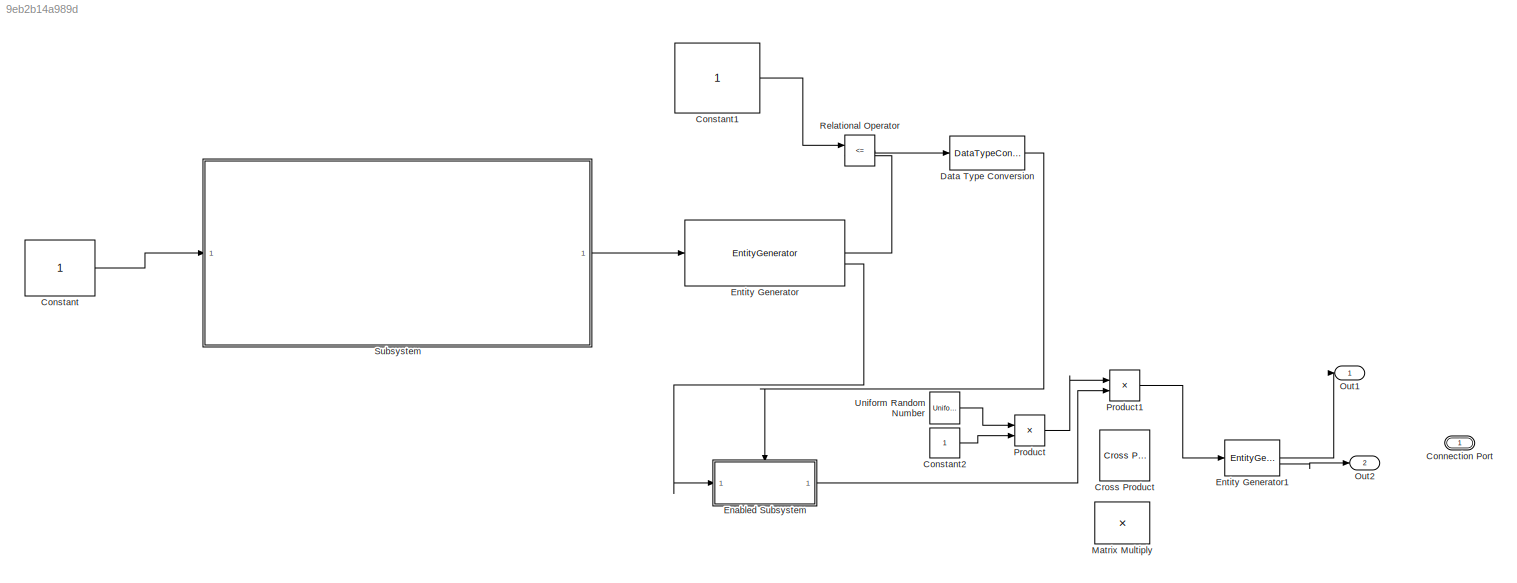
MODEL slx_9eb2b14a989d
KIND model
CONFIG AbsTol = auto
CONFIG EnableMultiTasking = off
CONFIG FixedStep = auto
CONFIG MaxStep = auto
CONFIG MinStep = auto
CONFIG RelTol = 1e-3
CONFIG SampleTimeConstraint = Unconstrained
CONFIG SolverName = VariableStepAuto
CONFIG StartTime = 0.0
CONFIG StopTime = 10.0
BLOCK [PMIOPort] Connection Port
  Side = Left
BLOCK [Constant] Constant
BLOCK [Constant] Constant1
BLOCK [Constant] Constant2
BLOCK [Reference] Cross Product  REF=matrix_library/Cross Product
  LibrarySourceBlock = simulink/Matrix\nOperations/Cross Product
  SourceBlock = matrix_library/Cross Product
  SourceType = CrossProduct
BLOCK [DataTypeConversion] Data Type Conversion
  OutDataTypeStr = double
  RndMeth = Floor
  SaturateOnIntegerOverflow = off
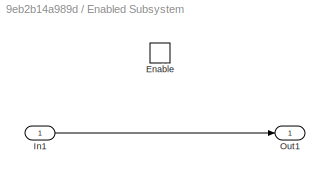
BLOCK [SubSystem] Enabled Subsystem
  TreatAsAtomicUnit = on
BLOCK [EnablePort] Enabled Subsystem/Enable
BLOCK [Inport] Enabled Subsystem/In1
BLOCK [Outport] Enabled Subsystem/Out1
BLOCK [EntityGenerator] Entity Generator
  EntityType = Structured
  EntityTypeName = Entity
  InputPortMap = u1
  NumberEntitiesDeparted = on
  OutputPortMap = o0,o3
  OutputPortMessageModes = n,m
  TimeSource = Signal port
BLOCK [EntityGenerator] Entity Generator1
  EntityType = Structured
  EntityTypeName = Entity
  InputPortMap = u1
  NumberEntitiesDeparted = on
  OutputPortMap = o0,o3
  OutputPortMessageModes = n,m
  TimeSource = Signal port
BLOCK [Product] Matrix Multiply
  Multiplication = Matrix(*)
BLOCK [Outport] Out1
BLOCK [Outport] Out2
  Port = 2
BLOCK [Product] Product
BLOCK [Product] Product1
BLOCK [RelationalOperator] Relational Operator
  InputSameDT = off
  Operator = <=
  OutDataTypeStr = boolean
  RndMeth = Simplest
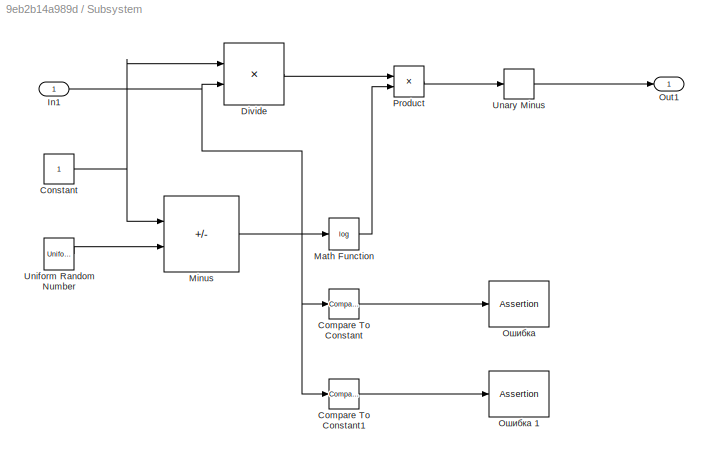
BLOCK [SubSystem] Subsystem
BLOCK [Reference] Subsystem/Compare To Constant  REF=simulink/Logic and Bit
Operations/Compare
To Constant
  SourceBlock = simulink/Logic and Bit\nOperations/Compare\nTo Constant
  SourceType = Compare To Constant
BLOCK [Reference] Subsystem/Compare To Constant1  REF=simulink/Logic and Bit
Operations/Compare
To Constant
  SourceBlock = simulink/Logic and Bit\nOperations/Compare\nTo Constant
  SourceType = Compare To Constant
BLOCK [Constant] Subsystem/Constant
BLOCK [Product] Subsystem/Divide
  Inputs = */
BLOCK [Inport] Subsystem/In1
BLOCK [Math] Subsystem/Math Function
  Operator = log
BLOCK [Sum] Subsystem/Minus
  IconShape = rectangular
  Inputs = +-
BLOCK [Outport] Subsystem/Out1
BLOCK [Product] Subsystem/Product
BLOCK [UnaryMinus] Subsystem/Unary Minus
BLOCK [UniformRandomNumber] Subsystem/Uniform Random Number
  SampleTime = 0.1
BLOCK [Assertion] Subsystem/Ошибка
BLOCK [Assertion] Subsystem/Ошибка 1
BLOCK [UniformRandomNumber] Uniform Random Number
  SampleTime = 0.1
LINE Constant1:1 -> Relational Operator:1
LINE Constant2:1 -> Product:2
LINE Constant:1 -> Subsystem:1
LINE Data Type Conversion:1 -> Enabled Subsystem:enable
LINE Enabled Subsystem/In1:1 -> Enabled Subsystem/Out1:1
LINE Enabled Subsystem:1 -> Product1:2
LINE Entity Generator1:1 -> Out1:1
LINE Entity Generator1:2 -> Out2:1
LINE Entity Generator:1 -> Relational Operator:2
LINE Entity Generator:2 -> Enabled Subsystem:1
LINE Product1:1 -> Entity Generator1:1
LINE Product:1 -> Product1:1
LINE Relational Operator:1 -> Data Type Conversion:1
LINE Subsystem/Compare To Constant1:1 -> Subsystem/Ошибка 1:1
LINE Subsystem/Compare To Constant:1 -> Subsystem/Ошибка:1
NET Subsystem/Constant:1 -> Subsystem/Divide:1, Subsystem/Minus:1
LINE Subsystem/Divide:1 -> Subsystem/Product:1
NET Subsystem/In1:1 -> Subsystem/Compare To Constant1:1, Subsystem/Compare To Constant:1, Subsystem/Divide:2
LINE Subsystem/Math Function:1 -> Subsystem/Product:2
LINE Subsystem/Minus:1 -> Subsystem/Math Function:1
LINE Subsystem/Product:1 -> Subsystem/Unary Minus:1
LINE Subsystem/Unary Minus:1 -> Subsystem/Out1:1
LINE Subsystem/Uniform Random Number:1 -> Subsystem/Minus:2
LINE Subsystem:1 -> Entity Generator:1
LINE Uniform Random Number:1 -> Product:1
note: NET lines group one-source signal fan-out (src -> all destinations, sorted); 1:1 wires keep LINE
